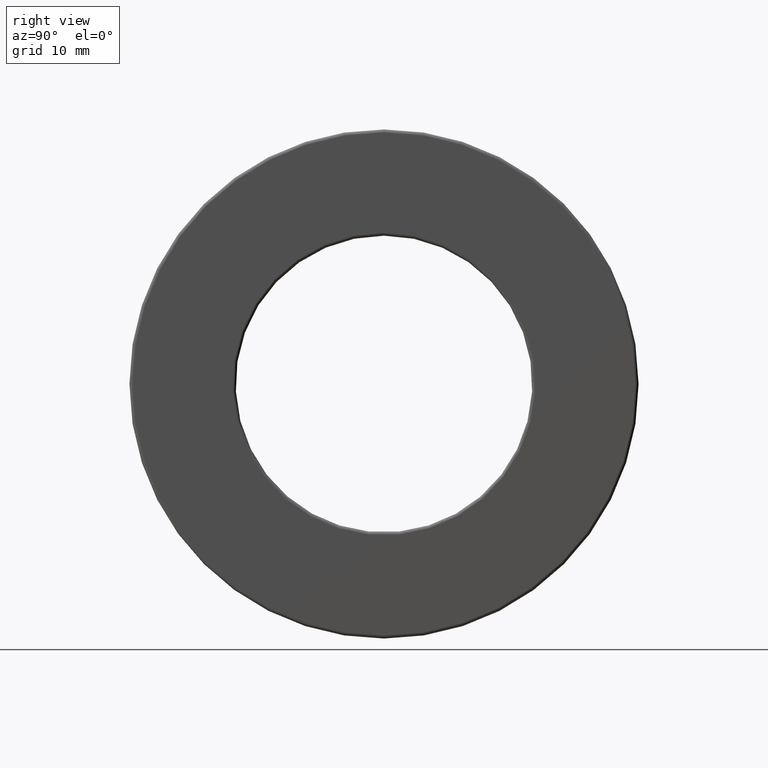
[diagram: clean part render]
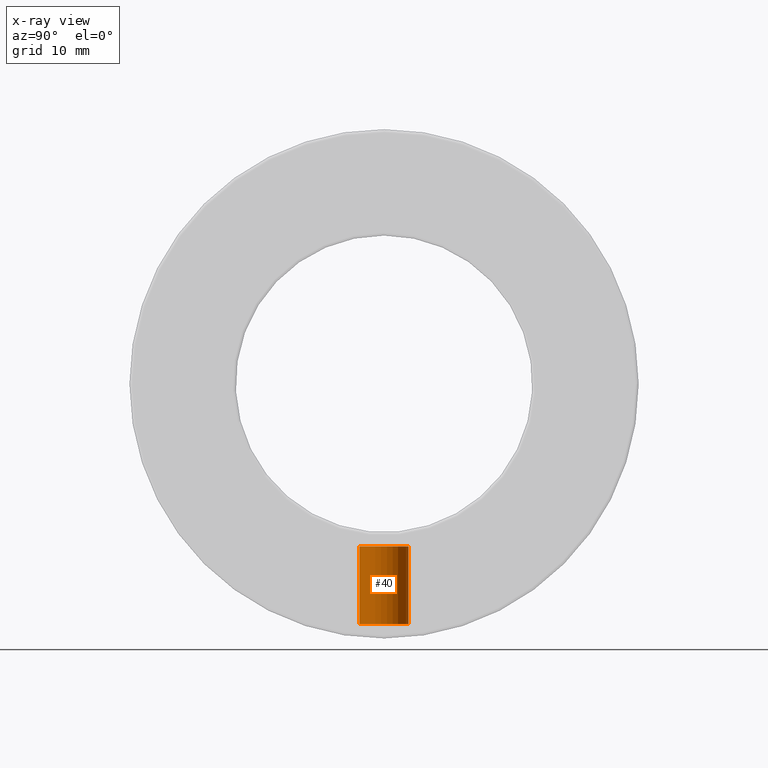
[diagram: x-ray — body ghosted, one internal face saturated and labeled with its STEP entity id]
A machine part, right view, then the same camera in x-ray: the body is ghosted and one INTERNAL B-rep face — a face not visible from any outside direction — is saturated and labeled: STEP entity #40.
In plain terms, the highlighted cylindrical surface (bore or boss wall) has radius 3.9624 mm, axis along (0, -0, -1).
Its self-contained STEP definition (entity closure, byte-faithful):
#16 = AXIS2_PLACEMENT_3D ( 'NONE', #1372, #692, #697 ) ;
#20 = ORIENTED_EDGE ( 'NONE', *, *, #1242, .F. ) ;
#40 = ADVANCED_FACE ( 'NONE', ( #131, #556 ), #930, .T. ) ;
#66 = VERTEX_POINT ( 'NONE', #1257 ) ;
#71 = DIRECTION ( 'NONE',  ( 0.0000000000000000000, 1.000000000000000000, -3.502369222646491400E-015 ) ) ;
#131 = FACE_OUTER_BOUND ( 'NONE', #203, .T. ) ;
#142 = AXIS2_PLACEMENT_3D ( 'NONE', #977, #1205, #1437 ) ;
#203 = EDGE_LOOP ( 'NONE', ( #1296 ) ) ;
#290 = DIRECTION ( 'NONE',  ( 0.0000000000000000000, -3.491481338843133400E-015, -1.000000000000000000 ) ) ;
#556 = FACE_OUTER_BOUND ( 'NONE', #1277, .T. ) ;
#589 = AXIS2_PLACEMENT_3D ( 'NONE', #754, #290, #71 ) ;
#692 = DIRECTION ( 'NONE',  ( 0.0000000000000000000, -3.491481338843133400E-015, -1.000000000000000000 ) ) ;
#697 = DIRECTION ( 'NONE',  ( 0.0000000000000000000, 1.000000000000000000, -3.502369222646494500E-015 ) ) ;
#754 = CARTESIAN_POINT ( 'NONE',  ( 0.0000000000000000000, -3.587497075661320000E-015, -1.027500000000000100 ) ) ;
#785 = CIRCLE ( 'NONE', #16, 0.1559999999999998600 ) ;
#930 = CYLINDRICAL_SURFACE ( 'NONE', #142, 0.1559999999999999200 ) ;
#968 = VERTEX_POINT ( 'NONE', #1067 ) ;
#977 = CARTESIAN_POINT ( 'NONE',  ( 0.0000000000000000000, 0.0000000000000000000, 0.0000000000000000000 ) ) ;
#1067 = CARTESIAN_POINT ( 'NONE',  ( 0.0000000000000000000, 0.1559999999999945600, -1.519375000000001000 ) ) ;
#1091 = CIRCLE ( 'NONE', #589, 0.1560000000000000000 ) ;
#1130 = EDGE_CURVE ( 'NONE', #66, #66, #1091, .T. ) ;
#1205 = DIRECTION ( 'NONE',  ( 0.0000000000000000000, -3.491481338843133400E-015, -1.000000000000000000 ) ) ;
#1242 = EDGE_CURVE ( 'NONE', #968, #968, #785, .T. ) ;
#1257 = CARTESIAN_POINT ( 'NONE',  ( 0.0000000000000000000, 0.1559999999999963900, -1.027500000000000700 ) ) ;
#1277 = EDGE_LOOP ( 'NONE', ( #20 ) ) ;
#1296 = ORIENTED_EDGE ( 'NONE', *, *, #1130, .T. ) ;
#1372 = CARTESIAN_POINT ( 'NONE',  ( 0.0000000000000000000, -5.304869459204787800E-015, -1.519375000000000600 ) ) ;
#1437 = DIRECTION ( 'NONE',  ( 0.0000000000000000000, 1.000000000000000000, -3.491481338843133400E-015 ) ) ;